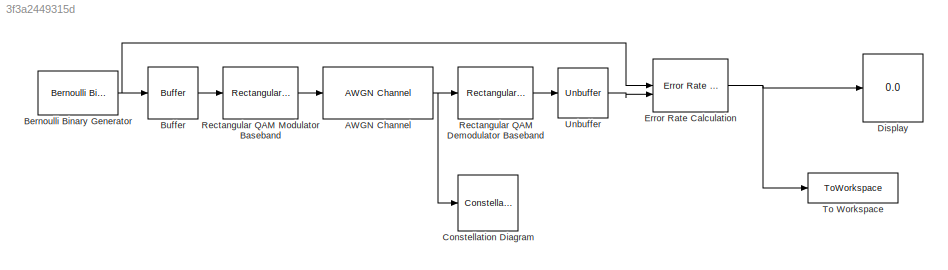
MODEL slx_3f3a2449315d
KIND model
CONFIG AbsTol = auto
CONFIG EnableMultiTasking = off
CONFIG FixedStep = auto
CONFIG MaxStep = auto
CONFIG MinStep = auto
CONFIG RelTol = 1e-3
CONFIG SampleTimeConstraint = Unconstrained
CONFIG SolverName = FixedStepDiscrete
CONFIG StartTime = 0.0
CONFIG StopTime = inf
BLOCK [Reference] AWGN Channel  REF=commchan3/AWGN
Channel
  SourceBlock = commchan3/AWGN\nChannel
  SourceType = AWGN Channel
BLOCK [Reference] Bernoulli Binary Generator  REF=commrandsrc3/Bernoulli Binary
Generator
  SourceBlock = commrandsrc3/Bernoulli Binary\nGenerator
  SourceType = Bernoulli Binary Generator
BLOCK [Buffer] Buffer
  N = 2
  OutputFrames = off
BLOCK [ConstellationDiagram] Constellation Diagram
  Commented = on
  GraphicalSettings = {"Style":{"BackgroundColor":[0.12941176470588237,0.12941176470588237,0.12941176470588237],"AxesColor":[0.07058823529411765,0.07058823529411765,0.07058823529411765],"LabelsColor":[0.8509803921568627,0.8509803921568627,0.8509803921568627],"PreserveColors":false,"LineStyle":["NONE"],"LineWidth":[1],"LineColor":[[1,0,0]],"Marker":["none"],"FontSize":8.5,"IsRefLine":[true]},"MeasurementChannel":0,"Refe...<+204ch>
  ReferenceConstellation = QPSK
  SamplesPerSymbol = 4
  ScopeFrameLocation = window
  ShowReferenceConstellation = off
  SymbolsToDisplay = 400
  SymbolsToDisplaySource = Property
  WasSavedAsWebScope = on
  WindowPosition = [124.000000,231.000000,600.000000,596.000000,]
BLOCK [Display] Display
  Decimation = 1
BLOCK [Reference] Error Rate Calculation  REF=commsink2/Error Rate
Calculation
  SourceBlock = commsink2/Error Rate\nCalculation
  SourceType = Error Rate Calculation
BLOCK [Reference] Rectangular QAM Demodulator Baseband  REF=commdigbbndam3/Rectangular QAM
Demodulator
Baseband
  SourceBlock = commdigbbndam3/Rectangular QAM\nDemodulator\nBaseband
  SourceType = Rectangular QAM Demodulator Baseband
BLOCK [Reference] Rectangular QAM Modulator Baseband  REF=commdigbbndam3/Rectangular QAM
Modulator
Baseband
  SourceBlock = commdigbbndam3/Rectangular QAM\nModulator\nBaseband
  SourceType = Rectangular QAM Modulator Baseband
BLOCK [ToWorkspace] To Workspace
  FixptAsFi = on
  MaxDataPoints = 1
  SampleTime = -1
  VariableName = Errors
BLOCK [Unbuffer] Unbuffer
NET AWGN Channel:1 -> Constellation Diagram:1, Rectangular QAM Demodulator Baseband:1
NET Bernoulli Binary Generator:1 -> Buffer:1, Error Rate Calculation:1
LINE Buffer:1 -> Rectangular QAM Modulator Baseband:1
NET Error Rate Calculation:1 -> Display:1, To Workspace:1
LINE Rectangular QAM Demodulator Baseband:1 -> Unbuffer:1
LINE Rectangular QAM Modulator Baseband:1 -> AWGN Channel:1
LINE Unbuffer:1 -> Error Rate Calculation:2
note: NET lines group one-source signal fan-out (src -> all destinations, sorted); 1:1 wires keep LINE
